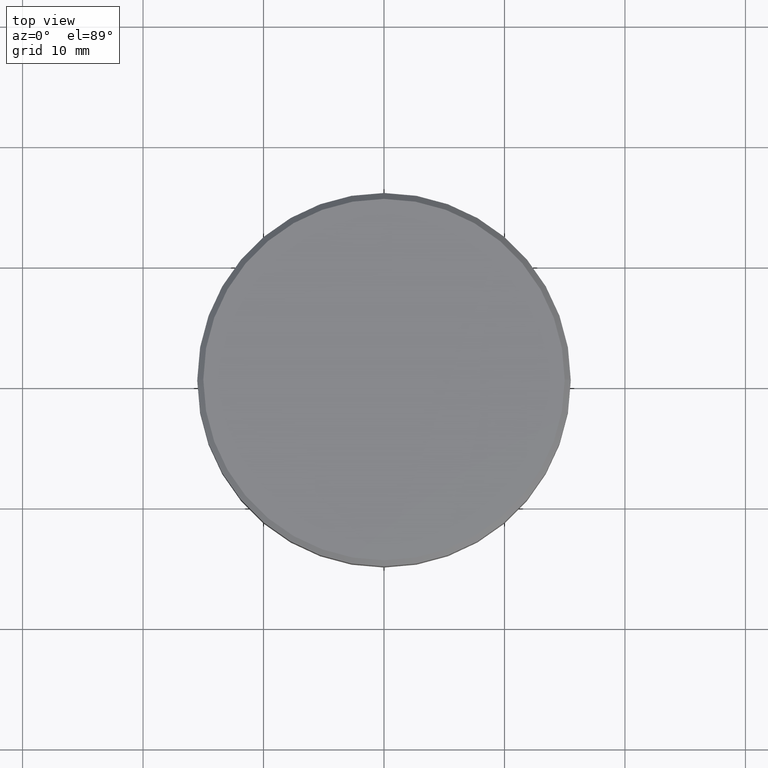
[diagram: clean part render]
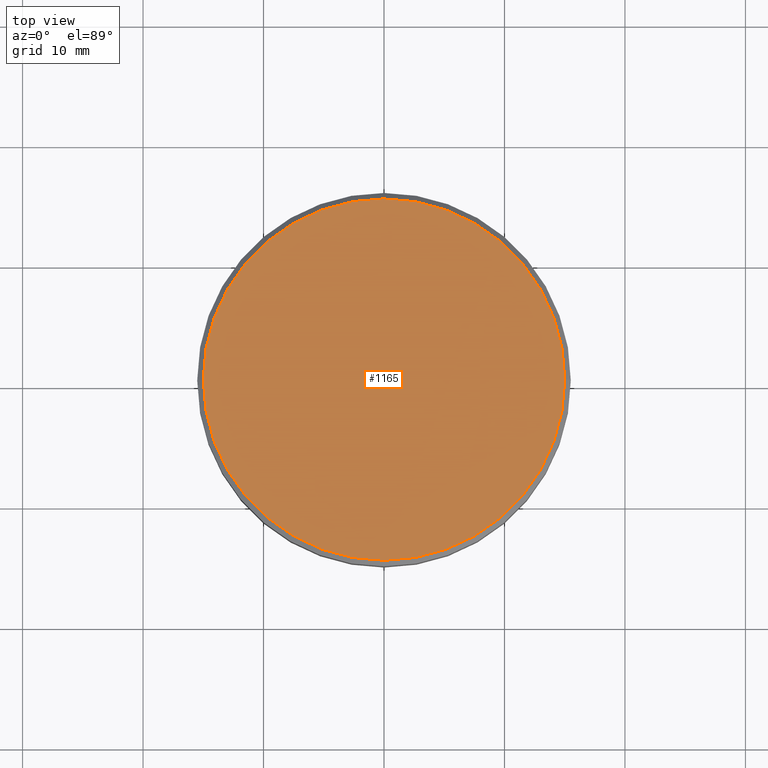
[diagram: same view with one face highlighted and labeled with its STEP entity id]
A machine part, top view. The second image highlights one B-rep face of the part: STEP entity #1165.
In plain terms, the highlighted planar face has unit normal (0, -0, 1).
Its self-contained STEP definition (entity closure, byte-faithful):
#62 = AXIS2_PLACEMENT_3D ( 'NONE', #1025, #748, #202 ) ;
#73 = DIRECTION ( 'NONE',  ( 1.000000000000000000, 0.000000000000000000, 0.000000000000000000 ) ) ;
#126 = DIRECTION ( 'NONE',  ( -0.000000000000000000, -0.000000000000000000, 1.000000000000000000 ) ) ;
#202 = DIRECTION ( 'NONE',  ( 1.000000000000000000, 0.000000000000000000, 0.000000000000000000 ) ) ;
#262 = FACE_OUTER_BOUND ( 'NONE', #590, .T. ) ;
#274 = ORIENTED_EDGE ( 'NONE', *, *, #910, .T. ) ;
#291 = ORIENTED_EDGE ( 'NONE', *, *, #787, .T. ) ;
#366 = VERTEX_POINT ( 'NONE', #674 ) ;
#377 = AXIS2_PLACEMENT_3D ( 'NONE', #632, #730, #73 ) ;
#482 = DIRECTION ( 'NONE',  ( 1.000000000000000000, 0.000000000000000000, 0.000000000000000000 ) ) ;
#590 = EDGE_LOOP ( 'NONE', ( #291, #274 ) ) ;
#632 = CARTESIAN_POINT ( 'NONE',  ( 0.000000000000000000, 0.000000000000000000, 0.000000000000000000 ) ) ;
#637 = PLANE ( 'NONE',  #377 ) ;
#674 = CARTESIAN_POINT ( 'NONE',  ( -15.00000000000000000, 0.000000000000000000, 0.000000000000000000 ) ) ;
#698 = CARTESIAN_POINT ( 'NONE',  ( 15.00000000000000000, 1.867586368699713376E-15, 0.000000000000000000 ) ) ;
#730 = DIRECTION ( 'NONE',  ( 0.000000000000000000, -0.000000000000000000, 1.000000000000000000 ) ) ;
#748 = DIRECTION ( 'NONE',  ( -0.000000000000000000, -0.000000000000000000, 1.000000000000000000 ) ) ;
#787 = EDGE_CURVE ( 'NONE', #366, #963, #913, .T. ) ;
#806 = CARTESIAN_POINT ( 'NONE',  ( 0.000000000000000000, 0.000000000000000000, 0.000000000000000000 ) ) ;
#817 = CIRCLE ( 'NONE', #62, 15.00000000000000000 ) ;
#910 = EDGE_CURVE ( 'NONE', #963, #366, #817, .T. ) ;
#913 = CIRCLE ( 'NONE', #1072, 15.00000000000000000 ) ;
#963 = VERTEX_POINT ( 'NONE', #698 ) ;
#1025 = CARTESIAN_POINT ( 'NONE',  ( 0.000000000000000000, 0.000000000000000000, 0.000000000000000000 ) ) ;
#1072 = AXIS2_PLACEMENT_3D ( 'NONE', #806, #126, #482 ) ;
#1165 = ADVANCED_FACE ( 'NONE', ( #262 ), #637, .T. ) ;